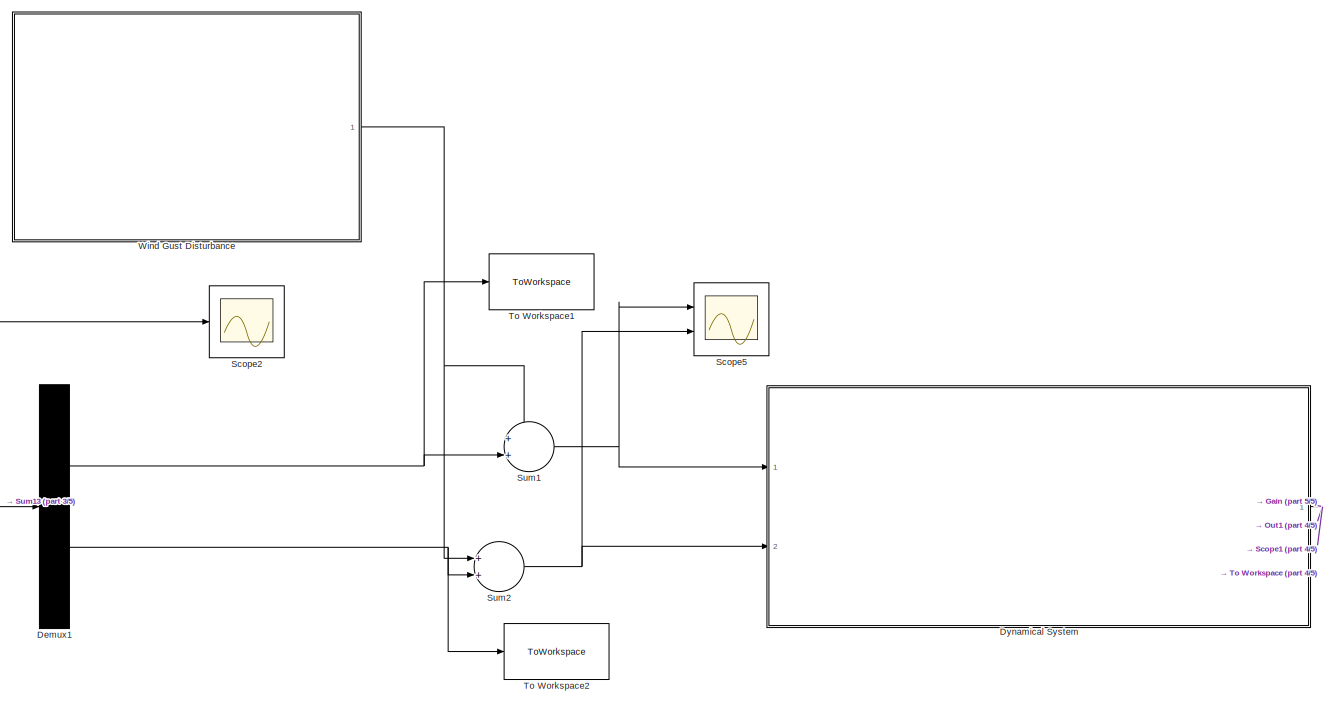
[diagram: root canvas - part 1/5, top center region]
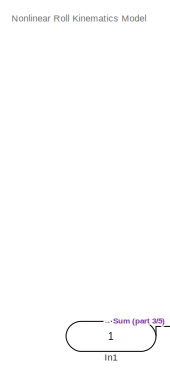
[diagram: root canvas - part 2/5, top left region]
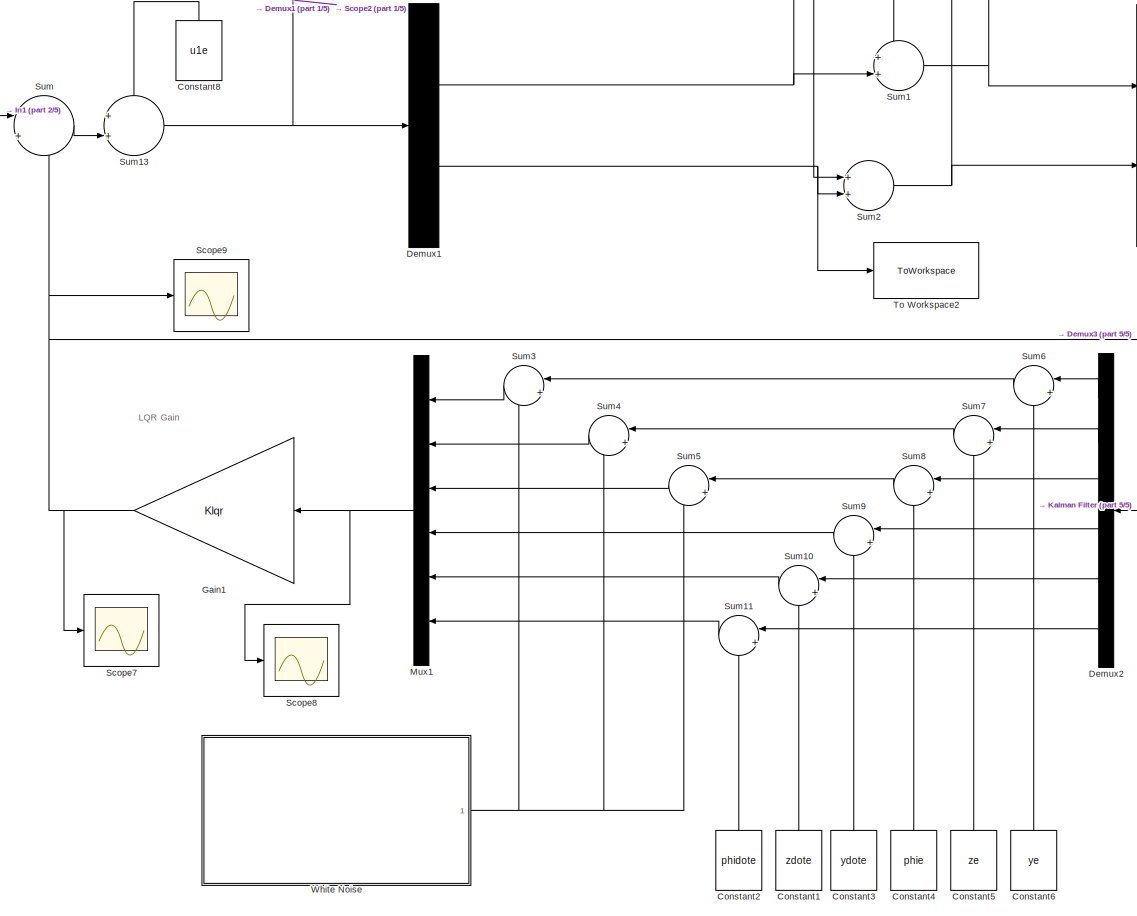
[diagram: root canvas - part 3/5, central region]
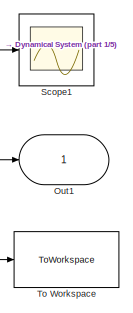
[diagram: root canvas - part 4/5, middle right region]
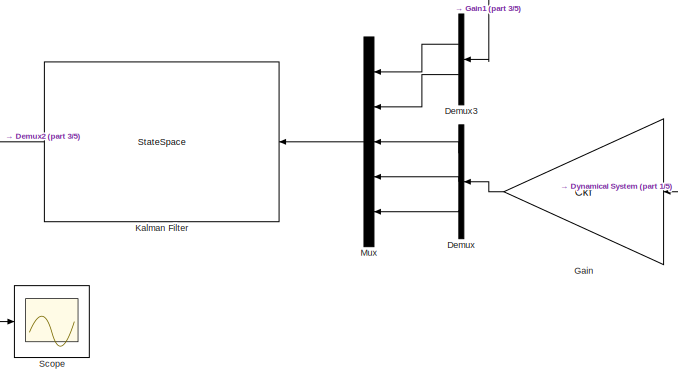
[diagram: root canvas - part 5/5, bottom right region]
MODEL slx_bfcfb3dab9cd
KIND model
CONFIG AbsTol = auto
CONFIG EnableMultiTasking = off
CONFIG FixedStep = auto
CONFIG MaxStep = auto
CONFIG MinStep = auto
CONFIG RelTol = 1e-8
CONFIG SampleTimeConstraint = Unconstrained
CONFIG SolverName = VariableStepAuto
CONFIG StartTime = 0.0
CONFIG StopTime = 60
BLOCK [Constant] Constant1
  NameLocation = right
  Value = zdote
BLOCK [Constant] Constant2
  NameLocation = right
  Value = phidote
BLOCK [Constant] Constant3
  NameLocation = right
  Value = ydote
BLOCK [Constant] Constant4
  NameLocation = right
  Value = phie
BLOCK [Constant] Constant5
  NameLocation = right
  Value = ze
BLOCK [Constant] Constant6
  NameLocation = right
  Value = ye
BLOCK [Constant] Constant8
  NameLocation = right
  Value = u1e
BLOCK [Demux] Demux
  Outputs = 3
  Ports = [1, 3]
BLOCK [Demux] Demux1
  Outputs = 2
  Ports = [1, 2]
BLOCK [Demux] Demux2
  Outputs = 6
  Ports = [1, 6]
BLOCK [Demux] Demux3
  Outputs = 2
  Ports = [1, 2]
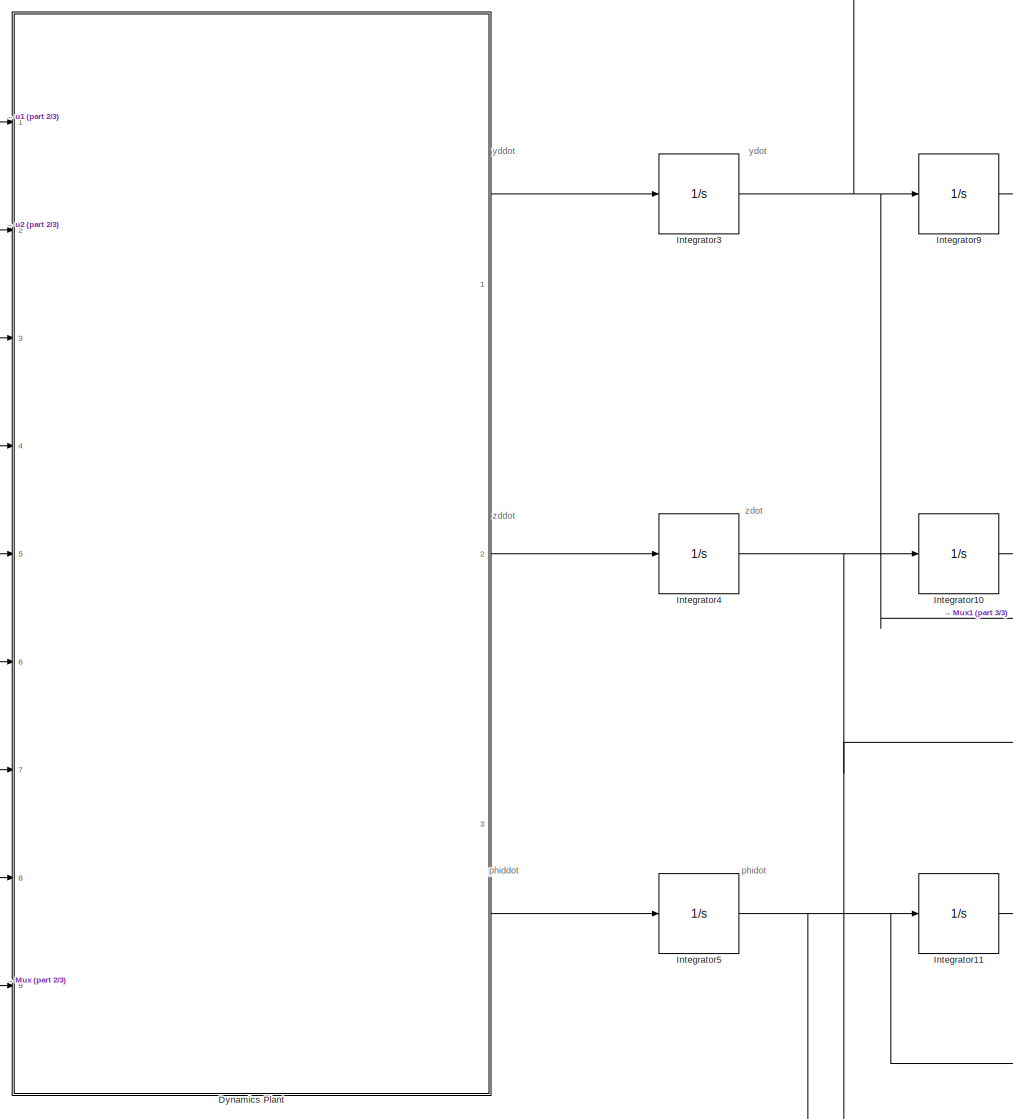
[diagram: Dynamical System - part 1/3, center side, full height]
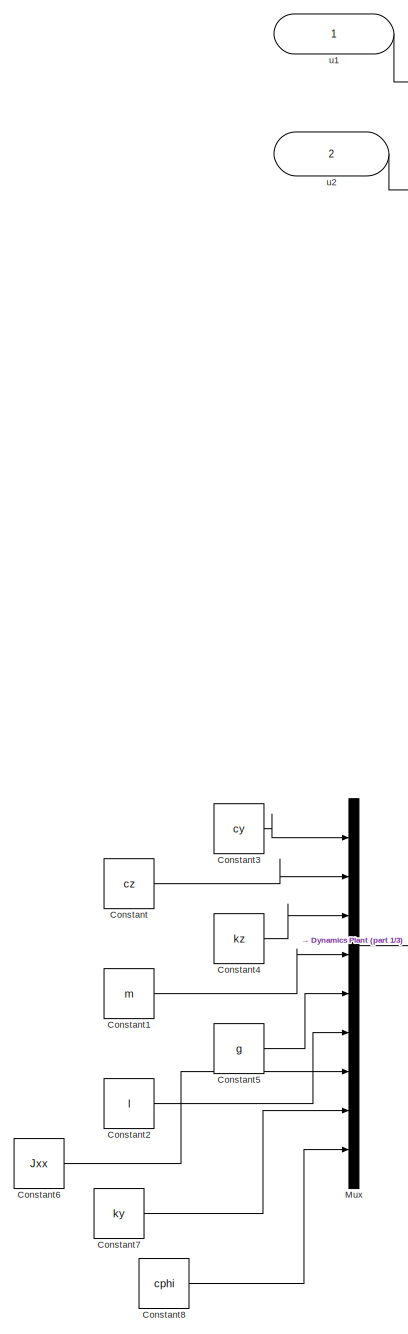
[diagram: Dynamical System - part 2/3, left side, full height]
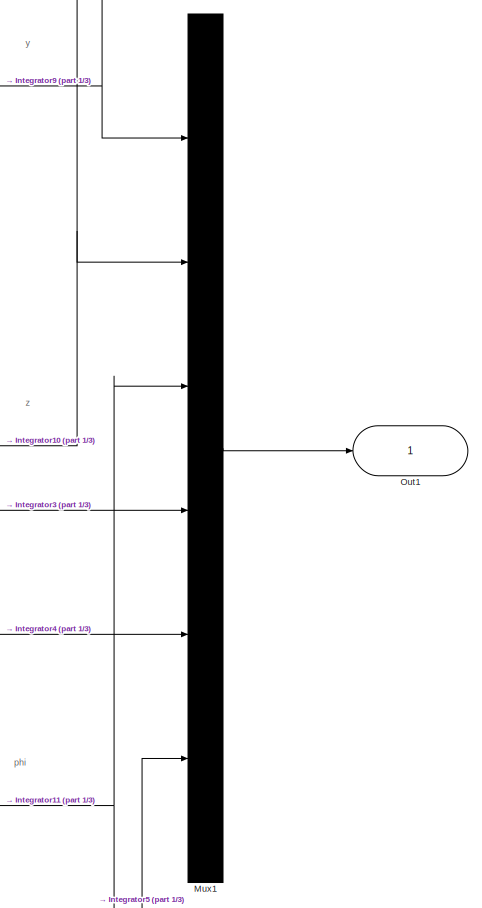
[diagram: Dynamical System - part 3/3, middle right region]
BLOCK [SubSystem] Dynamical System
  Ports = [2, 1]
  RequestExecContextInheritance = off
BLOCK [Constant] Dynamical System/Constant
  Value = cz
BLOCK [Constant] Dynamical System/Constant1
  Value = m
BLOCK [Constant] Dynamical System/Constant2
  Value = l
BLOCK [Constant] Dynamical System/Constant3
  Value = cy
BLOCK [Constant] Dynamical System/Constant4
  Value = kz
BLOCK [Constant] Dynamical System/Constant5
  Value = g
BLOCK [Constant] Dynamical System/Constant6
  Value = Jxx
BLOCK [Constant] Dynamical System/Constant7
  Value = ky
BLOCK [Constant] Dynamical System/Constant8
  Value = cphi
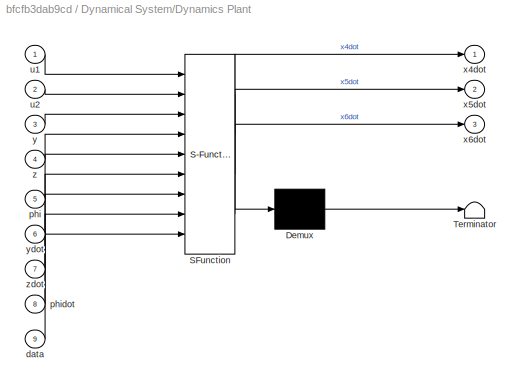
BLOCK [SubSystem] Dynamical System/Dynamics Plant
  ErrorFcn = Stateflow.Translate.translate
  PermitHierarchicalResolution = ExplicitOnly
  Ports = [9, 3]
  RequestExecContextInheritance = off
  SFBlockType = MATLAB Function
  TreatAsAtomicUnit = on
BLOCK [Demux] Dynamical System/Dynamics Plant/ Demux 
  Outputs = 1
  Ports = [1, 1]
BLOCK [S-Function] Dynamical System/Dynamics Plant/ SFunction 
  EnableBusSupport = on
  FunctionName = sf_sfun
  PortCounts = [9 4]
  Ports = [9, 4]
  SFcnIsStateOwnerBlock = off
  SFunctionDeploymentMode = off
  Tag = Stateflow S-Function 2
BLOCK [Terminator] Dynamical System/Dynamics Plant/ Terminator 
BLOCK [Inport] Dynamical System/Dynamics Plant/data
  Port = 9
BLOCK [Inport] Dynamical System/Dynamics Plant/phi
  Port = 5
BLOCK [Inport] Dynamical System/Dynamics Plant/phidot
  Port = 8
BLOCK [Inport] Dynamical System/Dynamics Plant/u1
BLOCK [Inport] Dynamical System/Dynamics Plant/u2
  Port = 2
BLOCK [Outport] Dynamical System/Dynamics Plant/x4dot
BLOCK [Outport] Dynamical System/Dynamics Plant/x5dot
  Port = 2
BLOCK [Outport] Dynamical System/Dynamics Plant/x6dot
  Port = 3
BLOCK [Inport] Dynamical System/Dynamics Plant/y
  Port = 3
BLOCK [Inport] Dynamical System/Dynamics Plant/ydot
  Port = 6
BLOCK [Inport] Dynamical System/Dynamics Plant/z
  Port = 4
BLOCK [Inport] Dynamical System/Dynamics Plant/zdot
  Port = 7
BLOCK [Integrator] Dynamical System/Integrator10
  Ports = [1, 1]
BLOCK [Integrator] Dynamical System/Integrator11
  Ports = [1, 1]
BLOCK [Integrator] Dynamical System/Integrator3
  Ports = [1, 1]
BLOCK [Integrator] Dynamical System/Integrator4
  Ports = [1, 1]
BLOCK [Integrator] Dynamical System/Integrator5
  Ports = [1, 1]
BLOCK [Integrator] Dynamical System/Integrator9
  Ports = [1, 1]
BLOCK [Mux] Dynamical System/Mux
  DisplayOption = bar
  Inputs = 9
  Ports = [9, 1]
BLOCK [Mux] Dynamical System/Mux1
  DisplayOption = bar
  Inputs = 6
  Ports = [6, 1]
BLOCK [Outport] Dynamical System/Out1
BLOCK [Inport] Dynamical System/u1
BLOCK [Inport] Dynamical System/u2
  Port = 2
BLOCK [Gain] Gain
  Gain = Ckf
  Multiplication = Matrix(K*u)
BLOCK [Gain] Gain1
  Gain = Klqr
  Multiplication = Matrix(K*u)
BLOCK [Inport] In1
BLOCK [StateSpace] Kalman Filter
  A = sysKF.A
  B = sysKF.B
  C = sysKF.C
  D = sysKF.D
  InitialCondition = [ye ze phie ydote zdote phidote]
  Ports = [1, 1]
BLOCK [Mux] Mux
  DisplayOption = bar
  Inputs = 5
  Ports = [5, 1]
BLOCK [Mux] Mux1
  DisplayOption = bar
  Inputs = 6
  Ports = [6, 1]
BLOCK [Outport] Out1
BLOCK [Scope] Scope
  Floating = off
  NumInputPorts = 1
  Ports = [1]
  ScopeSpecificationString = Simulink.scopes.TimeScopeBlockCfg('CurrentConfiguration', extmgr.ConfigurationSet(extmgr.Configuration('Core','General UI',true),extmgr.Configuration('Core','Source UI',true),extmgr.Configuration('Sources','WiredSimulink',true,'DataLoggingVariableName','ScopeData1'),extmgr.Configuration('Visuals','Time Domain',true,'SerializedDisplays',{struct('MinYLimReal','-0.17339','MaxYLimReal','0.20221','YLab...<+1464ch>
BLOCK [Scope] Scope1
  Floating = off
  NumInputPorts = 1
  Ports = [1]
  ScopeSpecificationString = Simulink.scopes.TimeScopeBlockCfg('CurrentConfiguration', extmgr.ConfigurationSet(extmgr.Configuration('Core','General UI',true),extmgr.Configuration('Core','Source UI',true),extmgr.Configuration('Sources','WiredSimulink',true,'DataLoggingVariableName','ScopeData2'),extmgr.Configuration('Visuals','Time Domain',true,'SerializedDisplays',{struct('MinYLimReal','-0.13793','MaxYLimReal','0.11868','YLab...<+1663ch>
BLOCK [Scope] Scope2
  Floating = off
  NumInputPorts = 1
  Ports = [1]
  ScopeSpecificationString = Simulink.scopes.TimeScopeBlockCfg('CurrentConfiguration', extmgr.ConfigurationSet(extmgr.Configuration('Core','General UI',true),extmgr.Configuration('Core','Source UI',true),extmgr.Configuration('Sources','WiredSimulink',true,'DataLoggingVariableName','ScopeData3'),extmgr.Configuration('Visuals','Time Domain',true,'SerializedDisplays',{struct('MinYLimReal','-53203.42794','MaxYLimReal','58536.2571...<+1516ch>
BLOCK [Scope] Scope5
  Floating = off
  NumInputPorts = 2
  Ports = [2]
  ScopeSpecificationString = Simulink.scopes.TimeScopeBlockCfg('CurrentConfiguration', extmgr.ConfigurationSet(extmgr.Configuration('Core','General UI',true),extmgr.Configuration('Core','Source UI',true),extmgr.Configuration('Sources','WiredSimulink',true,'DataLoggingVariableName','ScopeData6'),extmgr.Configuration('Visuals','Time Domain',true,'SerializedDisplays',{struct('MinYLimReal','-53203.50709','MaxYLimReal','58536.9694...<+1427ch>
BLOCK [Scope] Scope7
  Floating = off
  NumInputPorts = 1
  Ports = [1]
  ScopeSpecificationString = Simulink.scopes.TimeScopeBlockCfg('CurrentConfiguration', extmgr.ConfigurationSet(extmgr.Configuration('Core','General UI',true),extmgr.Configuration('Core','Source UI',true),extmgr.Configuration('Sources','WiredSimulink',true,'DataLoggingVariableName','ScopeData1'),extmgr.Configuration('Visuals','Time Domain',true,'SerializedDisplays',{struct('MinYLimReal','-133698.154','MaxYLimReal','14855.35044...<+1518ch>
BLOCK [Scope] Scope8
  Floating = off
  NumInputPorts = 1
  Ports = [1]
  ScopeSpecificationString = Simulink.scopes.TimeScopeBlockCfg('CurrentConfiguration', extmgr.ConfigurationSet(extmgr.Configuration('Core','General UI',true),extmgr.Configuration('Core','Source UI',true),extmgr.Configuration('Sources','WiredSimulink',true,'DataLoggingVariableName','ScopeData2'),extmgr.Configuration('Visuals','Time Domain',true,'SerializedDisplays',{struct('MinYLimReal','-4.44848','MaxYLimReal','6.31617','YLab...<+1514ch>
BLOCK [Scope] Scope9
  Floating = off
  NumInputPorts = 1
  Ports = [1]
  ScopeSpecificationString = Simulink.scopes.TimeScopeBlockCfg('CurrentConfiguration', extmgr.ConfigurationSet(extmgr.Configuration('Core','General UI',true),extmgr.Configuration('Core','Source UI',true),extmgr.Configuration('Sources','WiredSimulink',true,'DataLoggingVariableName','ScopeData1'),extmgr.Configuration('Visuals','Time Domain',true,'SerializedDisplays',{struct('MinYLimReal','-154688.87076','MaxYLimReal','-14629.44...<+1528ch>
BLOCK [Sum] Sum
  Inputs = |+-
  Ports = [2, 1]
BLOCK [Sum] Sum1
  Inputs = ++|
  Ports = [2, 1]
BLOCK [Sum] Sum10
  Inputs = |+-
  Ports = [2, 1]
BLOCK [Sum] Sum11
  Inputs = |+-
  Ports = [2, 1]
BLOCK [Sum] Sum13
  Inputs = ++|
  Ports = [2, 1]
BLOCK [Sum] Sum2
  Inputs = ++|
  Ports = [2, 1]
BLOCK [Sum] Sum3
  Inputs = |++
  Ports = [2, 1]
BLOCK [Sum] Sum4
  Inputs = |++
  Ports = [2, 1]
BLOCK [Sum] Sum5
  Inputs = |++
  Ports = [2, 1]
BLOCK [Sum] Sum6
  Inputs = |+-
  Ports = [2, 1]
BLOCK [Sum] Sum7
  Inputs = |+-
  Ports = [2, 1]
BLOCK [Sum] Sum8
  Inputs = |+-
  Ports = [2, 1]
BLOCK [Sum] Sum9
  Inputs = |+-
  Ports = [2, 1]
BLOCK [ToWorkspace] To Workspace
  FixptAsFi = on
  MaxDataPoints = inf
  Ports = [1]
  SampleTime = -1
  SaveFormat = Structure With Time
  VariableName = xstates
BLOCK [ToWorkspace] To Workspace1
  FixptAsFi = on
  MaxDataPoints = inf
  Ports = [1]
  SampleTime = -1
  SaveFormat = Structure With Time
  VariableName = Fleft
BLOCK [ToWorkspace] To Workspace2
  FixptAsFi = on
  MaxDataPoints = inf
  Ports = [1]
  SampleTime = -1
  SaveFormat = Structure With Time
  VariableName = Fright
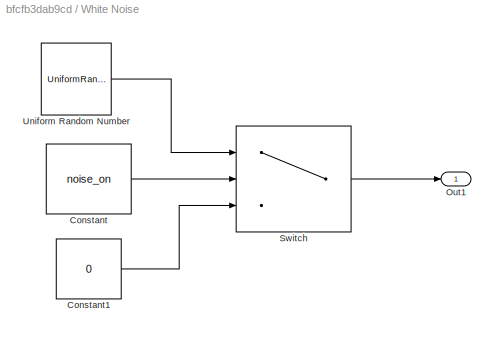
BLOCK [SubSystem] White Noise
  Ports = [0, 1]
  RequestExecContextInheritance = off
BLOCK [Constant] White Noise/Constant
  Value = noise_on
BLOCK [Constant] White Noise/Constant1
  Value = 0
BLOCK [Outport] White Noise/Out1
BLOCK [Switch] White Noise/Switch
  Criteria = u2 > Threshold
  InputSameDT = off
  SaturateOnIntegerOverflow = off
BLOCK [UniformRandomNumber] White Noise/Uniform Random Number
  Maximum = 0.1
  Minimum = -0.1
  SampleTime = 0.1
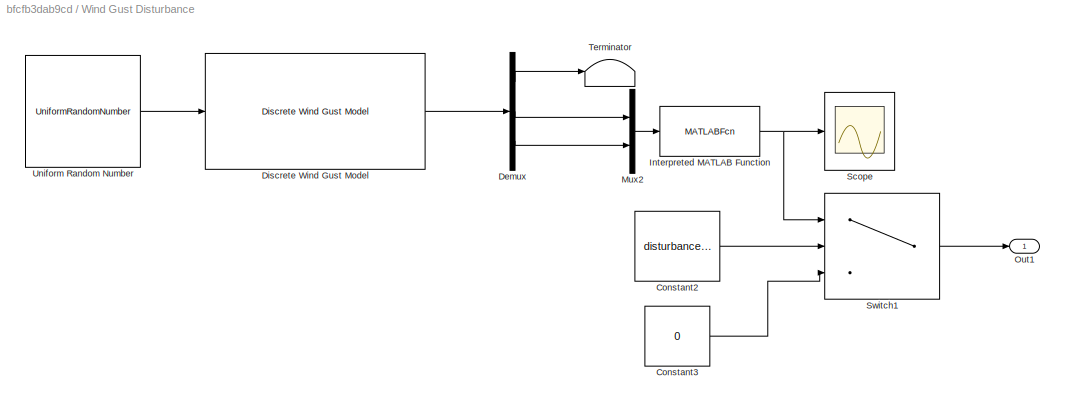
BLOCK [SubSystem] Wind Gust Disturbance
  Ports = [0, 1]
  RequestExecContextInheritance = off
BLOCK [Constant] Wind Gust Disturbance/Constant2
  Value = disturbance_on
BLOCK [Constant] Wind Gust Disturbance/Constant3
  Value = 0
BLOCK [Demux] Wind Gust Disturbance/Demux
  Outputs = 3
  Ports = [1, 3]
BLOCK [Reference] Wind Gust Disturbance/Discrete Wind Gust Model  REF=aerolibwind2/Discrete Wind Gust Model
  Ports = [1, 1]
  SourceBlock = aerolibwind2/Discrete Wind Gust Model
  SourceProductBaseCode = AE
  SourceType = Discrete Wind Gust Model
BLOCK [MATLABFcn] Wind Gust Disturbance/Interpreted MATLAB Function
  MATLABFcn = sqrt(u(1)^2 + u(2)^2)
  Ports = [1, 1]
BLOCK [Mux] Wind Gust Disturbance/Mux2
  DisplayOption = bar
  Inputs = 2
  Ports = [2, 1]
BLOCK [Outport] Wind Gust Disturbance/Out1
BLOCK [Scope] Wind Gust Disturbance/Scope
  Floating = off
  NumInputPorts = 1
  Ports = [1]
  ScopeSpecificationString = Simulink.scopes.TimeScopeBlockCfg('CurrentConfiguration', extmgr.ConfigurationSet(extmgr.Configuration('Core','General UI',true),extmgr.Configuration('Core','Source UI',true),extmgr.Configuration('Sources','WiredSimulink',true),extmgr.Configuration('Visuals','Time Domain',true,'SerializedDisplays',{struct('MinYLimReal','-2.40395','MaxYLimReal','21.63551','YLabelReal','','MinYLimMag','0.00000','Max...<+1378ch>
BLOCK [Switch] Wind Gust Disturbance/Switch1
  Criteria = u2 > Threshold
  InputSameDT = off
  SaturateOnIntegerOverflow = off
BLOCK [Terminator] Wind Gust Disturbance/Terminator
BLOCK [UniformRandomNumber] Wind Gust Disturbance/Uniform Random Number
  Maximum = Vwind_ul
  Minimum = Vwind_ll
  SampleTime = 0.65
  Seed = 1
ANNOTATION (root): LQR Gain
ANNOTATION (root): Nonlinear Roll Kinematics Model
ANNOTATION Dynamical System: phi
ANNOTATION Dynamical System: phiddot
ANNOTATION Dynamical System: phidot
ANNOTATION Dynamical System: y
ANNOTATION Dynamical System: yddot
ANNOTATION Dynamical System: ydot
ANNOTATION Dynamical System: z
ANNOTATION Dynamical System: zddot
ANNOTATION Dynamical System: zdot
LINE Constant1:1 -> Sum10:2
LINE Constant2:1 -> Sum11:2
LINE Constant3:1 -> Sum9:2
LINE Constant4:1 -> Sum8:2
LINE Constant5:1 -> Sum7:2
LINE Constant6:1 -> Sum6:2
LINE Constant8:1 -> Sum13:1
NET Demux1:1 -> Sum1:2, To Workspace1:1
NET Demux1:2 -> Sum2:2, To Workspace2:1
LINE Demux2:1 -> Sum6:1
LINE Demux2:2 -> Sum7:1
LINE Demux2:3 -> Sum8:1
LINE Demux2:4 -> Sum9:1
LINE Demux2:5 -> Sum10:1
LINE Demux2:6 -> Sum11:1
LINE Demux3:1 -> Mux:1
LINE Demux3:2 -> Mux:2
LINE Demux:1 -> Mux:3
LINE Demux:2 -> Mux:4
LINE Demux:3 -> Mux:5
LINE Dynamical System/Constant1:1 -> Dynamical System/Mux:4
LINE Dynamical System/Constant2:1 -> Dynamical System/Mux:6
LINE Dynamical System/Constant3:1 -> Dynamical System/Mux:1
LINE Dynamical System/Constant4:1 -> Dynamical System/Mux:3
LINE Dynamical System/Constant5:1 -> Dynamical System/Mux:5
LINE Dynamical System/Constant6:1 -> Dynamical System/Mux:7
LINE Dynamical System/Constant7:1 -> Dynamical System/Mux:8
LINE Dynamical System/Constant8:1 -> Dynamical System/Mux:9
LINE Dynamical System/Constant:1 -> Dynamical System/Mux:2
LINE Dynamical System/Dynamics Plant:1 -> Dynamical System/Integrator3:1
LINE Dynamical System/Dynamics Plant:2 -> Dynamical System/Integrator4:1
LINE Dynamical System/Dynamics Plant:3 -> Dynamical System/Integrator5:1
NET Dynamical System/Integrator10:1 -> Dynamical System/Dynamics Plant:4, Dynamical System/Mux1:2
NET Dynamical System/Integrator11:1 -> Dynamical System/Dynamics Plant:5, Dynamical System/Mux1:3
NET Dynamical System/Integrator3:1 -> Dynamical System/Dynamics Plant:6, Dynamical System/Integrator9:1, Dynamical System/Mux1:4
NET Dynamical System/Integrator4:1 -> Dynamical System/Dynamics Plant:7, Dynamical System/Integrator10:1, Dynamical System/Mux1:5
NET Dynamical System/Integrator5:1 -> Dynamical System/Dynamics Plant:8, Dynamical System/Integrator11:1, Dynamical System/Mux1:6
NET Dynamical System/Integrator9:1 -> Dynamical System/Dynamics Plant:3, Dynamical System/Mux1:1
LINE Dynamical System/Mux1:1 -> Dynamical System/Out1:1
LINE Dynamical System/Mux:1 -> Dynamical System/Dynamics Plant:9
LINE Dynamical System/u1:1 -> Dynamical System/Dynamics Plant:1
LINE Dynamical System/u2:1 -> Dynamical System/Dynamics Plant:2
NET Dynamical System:1 -> Gain:1, Out1:1, Scope1:1, To Workspace:1
NET Gain1:1 -> Demux3:1, Scope7:1, Scope9:1, Sum:2
LINE Gain:1 -> Demux:1
LINE In1:1 -> Sum:1
NET Kalman Filter:1 -> Demux2:1, Scope:1
NET Mux1:1 -> Gain1:1, Scope8:1
LINE Mux:1 -> Kalman Filter:1
LINE Sum10:1 -> Mux1:5
LINE Sum11:1 -> Mux1:6
NET Sum13:1 -> Demux1:1, Scope2:1
NET Sum1:1 -> Dynamical System:1, Scope5:1
NET Sum2:1 -> Dynamical System:2, Scope5:2
LINE Sum3:1 -> Mux1:1
LINE Sum4:1 -> Mux1:2
LINE Sum5:1 -> Mux1:3
LINE Sum6:1 -> Sum3:1
LINE Sum7:1 -> Sum4:1
LINE Sum8:1 -> Sum5:1
LINE Sum9:1 -> Mux1:4
LINE Sum:1 -> Sum13:2
LINE White Noise/Constant1:1 -> White Noise/Switch:3
LINE White Noise/Constant:1 -> White Noise/Switch:2
LINE White Noise/Switch:1 -> White Noise/Out1:1
LINE White Noise/Uniform Random Number:1 -> White Noise/Switch:1
NET White Noise:1 -> Sum3:2, Sum4:2, Sum5:2
LINE Wind Gust Disturbance/Constant2:1 -> Wind Gust Disturbance/Switch1:2
LINE Wind Gust Disturbance/Constant3:1 -> Wind Gust Disturbance/Switch1:3
LINE Wind Gust Disturbance/Demux:1 -> Wind Gust Disturbance/Terminator:1
LINE Wind Gust Disturbance/Demux:2 -> Wind Gust Disturbance/Mux2:1
LINE Wind Gust Disturbance/Demux:3 -> Wind Gust Disturbance/Mux2:2
LINE Wind Gust Disturbance/Discrete Wind Gust Model:1 -> Wind Gust Disturbance/Demux:1
NET Wind Gust Disturbance/Interpreted MATLAB Function:1 -> Wind Gust Disturbance/Scope:1, Wind Gust Disturbance/Switch1:1
LINE Wind Gust Disturbance/Mux2:1 -> Wind Gust Disturbance/Interpreted MATLAB Function:1
LINE Wind Gust Disturbance/Switch1:1 -> Wind Gust Disturbance/Out1:1
LINE Wind Gust Disturbance/Uniform Random Number:1 -> Wind Gust Disturbance/Discrete Wind Gust Model:1
NET Wind Gust Disturbance:1 -> Sum1:1, Sum2:1
note: NET lines group one-source signal fan-out (src -> all destinations, sorted); 1:1 wires keep LINE
CHART Dynamical System/Dynamics Plant states=1 transitions=1
  STATE_LABEL 'eML_blk_kernel()'
  STATE_LABEL 'SCRIPT:\nfunction [x4dot, x5dot, x6dot] = fcn(u1, u2, y, z, phi, ydot, zdot, phidot, data)\n    % Constants\n    cy   = data(1);\n    cz   = data(2);\n    kz   = data(3);\n    m    = data(4);\n    g    = data(5);\n    l    = data(6);\n    Jxx  = data(7);\n    ky   = data(8);\n    cphi = data(9);\n    \n    % ydot = x1dot, zdot = x2dot, phidot = x3dot\n    % yddot = x4dot, zddot = x5dot, phiddot = x6dot\n    \n   ...<+187ch>'
CHART  states=0 transitions=0
